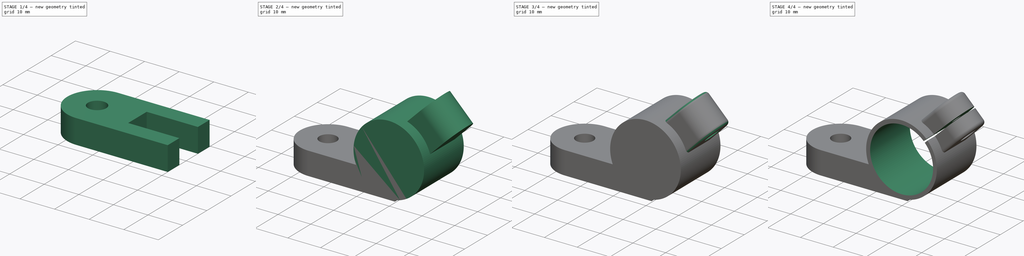
[diagram: build sequence overview — one tinted view per stage of 4, left to right]
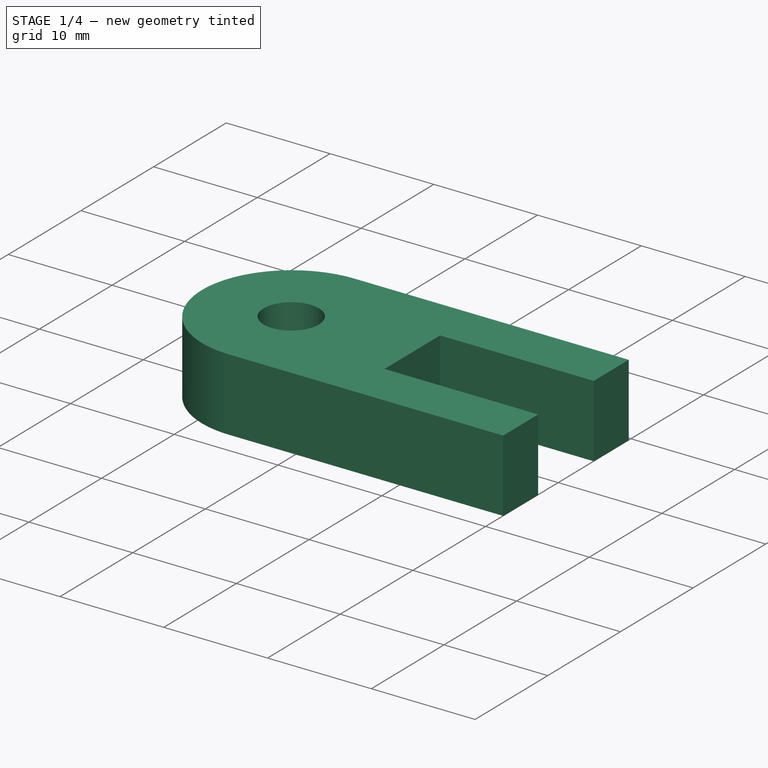
[diagram: stage 1 of 4 — iso view after this stage's code; geometry added in this stage tinted green]
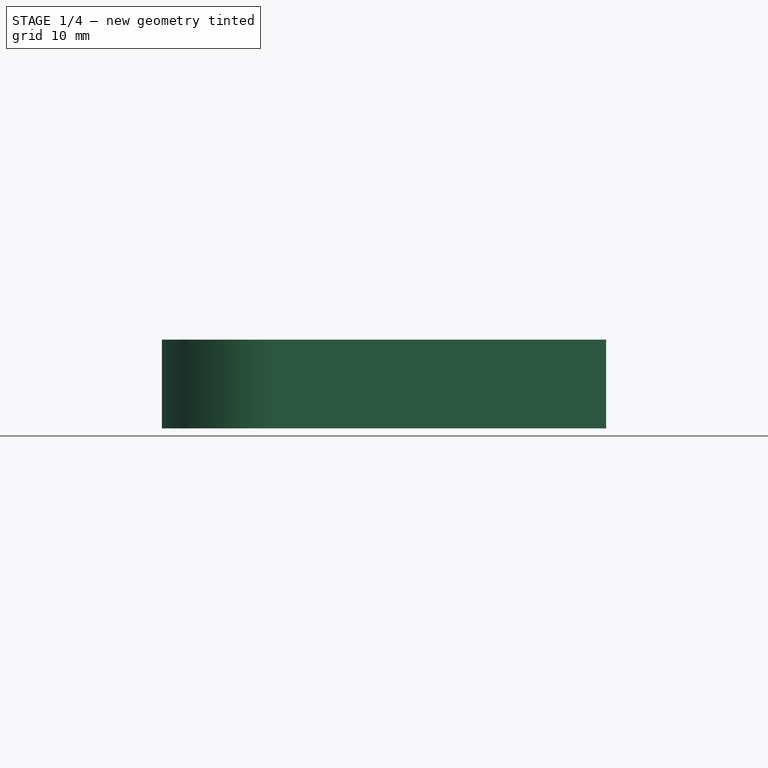
[diagram: stage 1 of 4 — front view after this stage's code; geometry added in this stage tinted green]
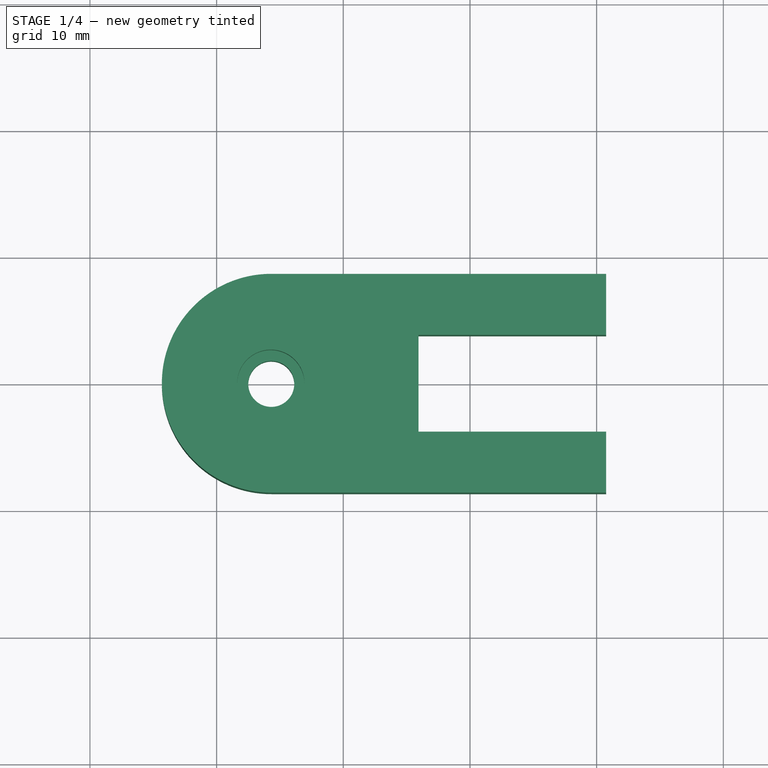
[diagram: stage 1 of 4 — top view after this stage's code; geometry added in this stage tinted green]
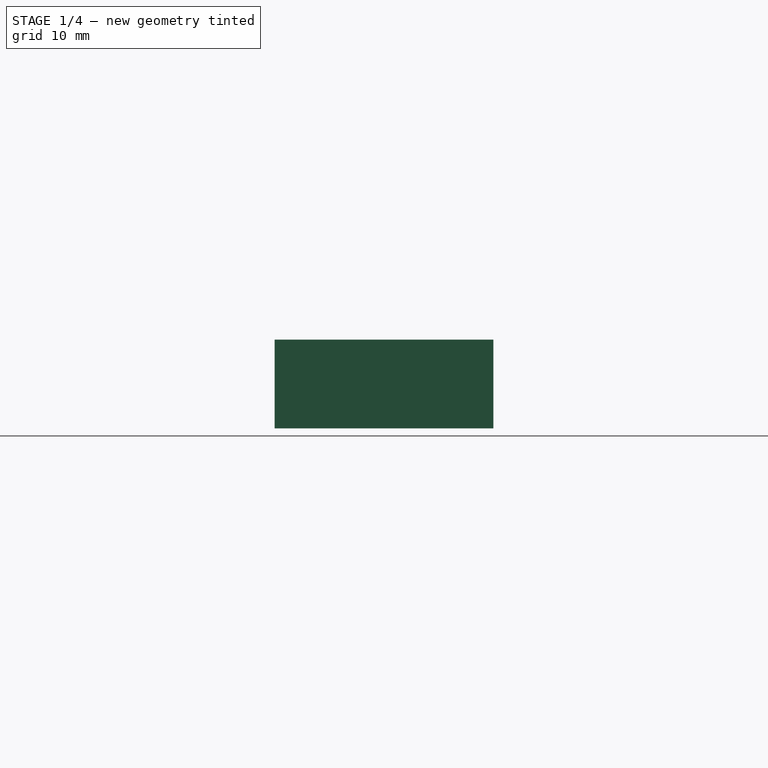
[diagram: stage 1 of 4 — right view after this stage's code; geometry added in this stage tinted green]
FCSTD DOCUMENT  (FreeCAD 0.21R33771 (Git))
Label: ex70
License: All rights reserved
LicenseURL: https://en.wikipedia.org/wiki/All_rights_reserved
objects: Sketcher::SketchObject×8, PartDesign::Pocket×5, PartDesign::Pad×3, PartDesign::Plane×1, PartDesign::Fillet×1, PartDesign::Body×1
note: 28 computed .brp shape members not serialized (recipe doc carries the construction recipe); baked Part::Feature solids carry a one-line shape summary decoded from their .brp

FEATURE [Sketcher::SketchObject] Sketch
  FullyConstrained = false
  MapMode = 5
  Support = -> [XY_Plane]
  sketch-geometry (10):
    g0: ArcOfCircle CenterX=-15.6847 CenterY=0 CenterZ=0 NormalX=0 NormalY=0 NormalZ=1 AngleXU=0 Radius=8.63853 StartAngle=1.5708 EndAngle=4.71239
    g1: LineSegment StartX=-15.6847 StartY=-8.63853 StartZ=0 EndX=10.7484 EndY=-8.63853 EndZ=0
    g2: LineSegment StartX=10.7484 StartY=8.63853 StartZ=0 EndX=-15.6847 EndY=8.63853 EndZ=0
    g3: Circle CenterX=-15.6847 CenterY=0 CenterZ=0 NormalX=0 NormalY=0 NormalZ=1 AngleXU=0 Radius=1.81557
    g4: LineSegment StartX=10.7484 StartY=8.63853 StartZ=0 EndX=10.7484 EndY=3.82165 EndZ=0
    g5: LineSegment StartX=10.7484 StartY=3.82165 StartZ=0 EndX=-4.06051 EndY=3.82165 EndZ=0
    g6: LineSegment StartX=-4.06051 StartY=3.82165 StartZ=0 EndX=-4.06051 EndY=-3.82165 EndZ=0
    g7: LineSegment StartX=-4.06051 StartY=-3.82165 StartZ=0 EndX=10.7484 EndY=-3.82165 EndZ=0
    g8: GeomPoint X=18.551 Y=0 Z=0
    g9: LineSegment StartX=10.7484 StartY=-3.82165 StartZ=0 EndX=10.7484 EndY=-8.63853 EndZ=0
  constraints (15):
    c: Tangent(g0,g1) = -1.5708
    c: Tangent(g2,g0) = -1.5708
    c: PointOnObject(g0,g-1)
    c: Coincident(g3,g0)
    c: Vertical(g4)
    c: Coincident(g2,g4)
    c: Coincident(g1,g9)
    c: Coincident(g5,g6)
    c: Coincident(g6,g7)
    c: Horizontal(g5)
    c: Horizontal(g7)
    c: Vertical(g6)
    c: PointOnObject(g8,g-1)
    c: Coincident(g4,g5)
    c: Coincident(g7,g9)
FEATURE [PartDesign::Pad] Pad
  Direction = (0,0,1)
  Length = 7
  Length2 = 10
  Profile = -> Sketch
  ReferenceAxis = -> Sketch [N_Axis]
  Type = 0
FEATURE [Sketcher::SketchObject] Sketch001
  FullyConstrained = false
  MapMode = 5
  Placement = pos=(0,0,7) rot=(0,0,1;0rad)
  Support = -> [Pad]
  sketch-geometry (1):
    g0: Circle CenterX=-15.7216 CenterY=0 CenterZ=0 NormalX=0 NormalY=0 NormalZ=1 AngleXU=0 Radius=2.65648
  constraints (1):
    c: PointOnObject(g0,g-1)
FEATURE [PartDesign::Pocket] Pocket
  BaseFeature = -> Pad
  Direction = (0,0,-1)
  Length = 3
  Length2 = 5
  Profile = -> Sketch001
  ReferenceAxis = -> Sketch001 [N_Axis]
  Type = 0
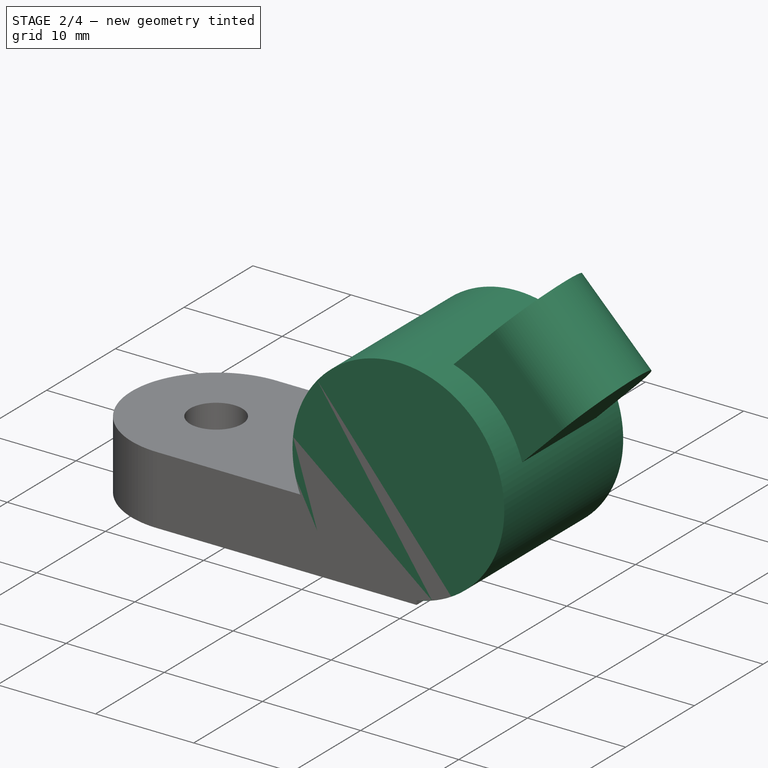
[diagram: stage 2 of 4 — iso view after this stage's code; geometry added in this stage tinted green]
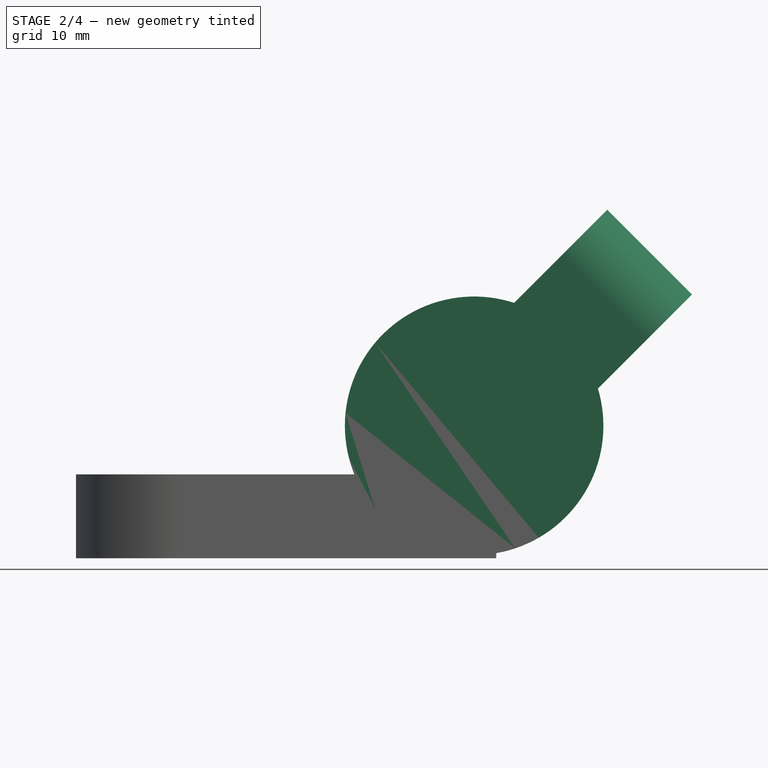
[diagram: stage 2 of 4 — front view after this stage's code; geometry added in this stage tinted green]
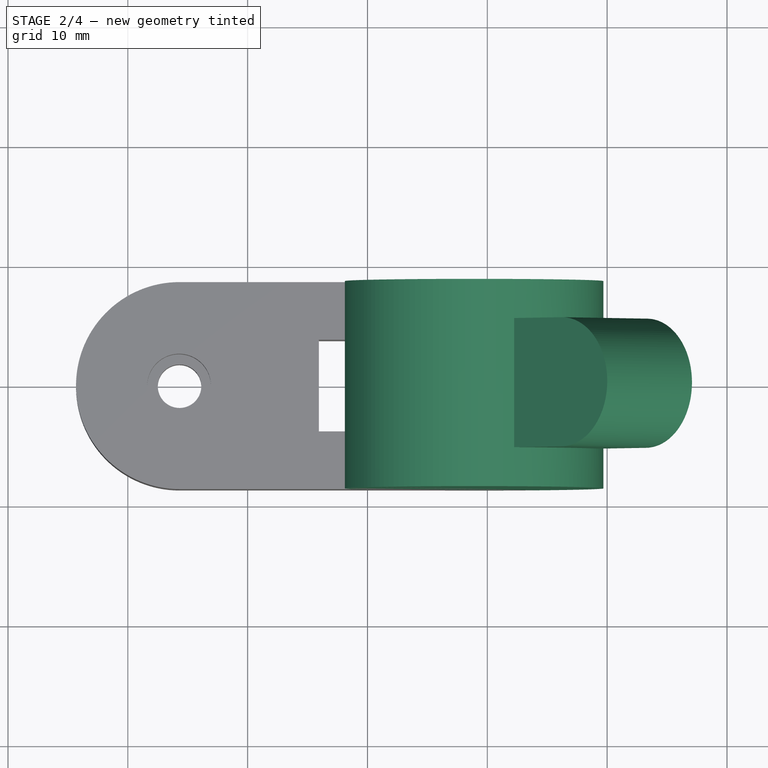
[diagram: stage 2 of 4 — top view after this stage's code; geometry added in this stage tinted green]
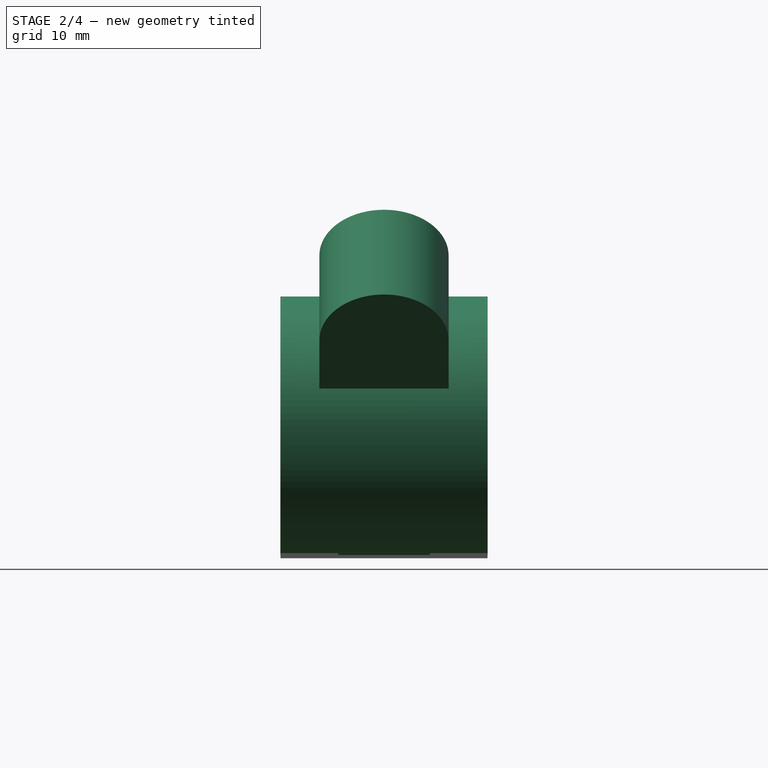
[diagram: stage 2 of 4 — right view after this stage's code; geometry added in this stage tinted green]
FEATURE [Sketcher::SketchObject] Sketch002
  FullyConstrained = false
  MapMode = 5
  Placement = pos=(0,0,0) rot=(1,0,0;1.5708rad)
  Support = -> [XZ_Plane]
  sketch-geometry (1):
    g0: Circle CenterX=8.90116 CenterY=11.0524 CenterZ=0 NormalX=0 NormalY=0 NormalZ=1 AngleXU=0 Radius=10.787
FEATURE [PartDesign::Pad] Pad001
  BaseFeature = -> Pocket
  Direction = (0,-1,2e-16)
  Length = 17.3
  Length2 = 10
  Midplane = true
  Profile = -> Sketch002
  ReferenceAxis = -> Sketch002 [N_Axis]
  Type = 0
FEATURE [PartDesign::Plane] DatumPlane
  AttachmentOffset = pos=(0,0,-2) rot=(0,1,0;0.785398rad)
  Length = 86.6442
  MapMode = 5
  Placement = pos=(0,0,2) rot=(0.92388,0,0.382683;3.14159rad)
  ResizeMode = 0
  Support = -> [Pad001]
  Width = 62.2018
FEATURE [Sketcher::SketchObject] Sketch003
  FullyConstrained = false
  MapMode = 5
  Placement = pos=(0,0,2) rot=(0.92388,0,0.382683;3.14159rad)
  Support = -> [DatumPlane]
  sketch-geometry (4):
    g0: ArcOfCircle CenterX=27.9054 CenterY=0 CenterZ=0 NormalX=0 NormalY=0 NormalZ=1 AngleXU=0 Radius=5.38951 StartAngle=4.71239 EndAngle=7.85398
    g1: LineSegment StartX=20.4065 StartY=-5.38951 StartZ=0 EndX=27.9054 EndY=-5.38951 EndZ=0
    g2: LineSegment StartX=27.9054 StartY=5.38951 StartZ=0 EndX=20.4065 EndY=5.38951 EndZ=0
    g3: LineSegment StartX=20.4065 StartY=5.38951 StartZ=0 EndX=20.4065 EndY=-5.38951 EndZ=0
  constraints (6):
    c: Tangent(g1,g0) = -1.5708
    c: Tangent(g0,g2) = -1.5708
    c: PointOnObject(g0,g-1)
    c: Vertical(g3)
    c: Coincident(g2,g3)
    c: Coincident(g1,g3)
FEATURE [PartDesign::Pad] Pad002
  BaseFeature = -> Pad001
  Direction = (0.707107,0,-0.707107)
  Length = 10
  Length2 = 10
  Midplane = true
  Profile = -> Sketch003
  ReferenceAxis = -> Sketch003 [N_Axis]
  Type = 0
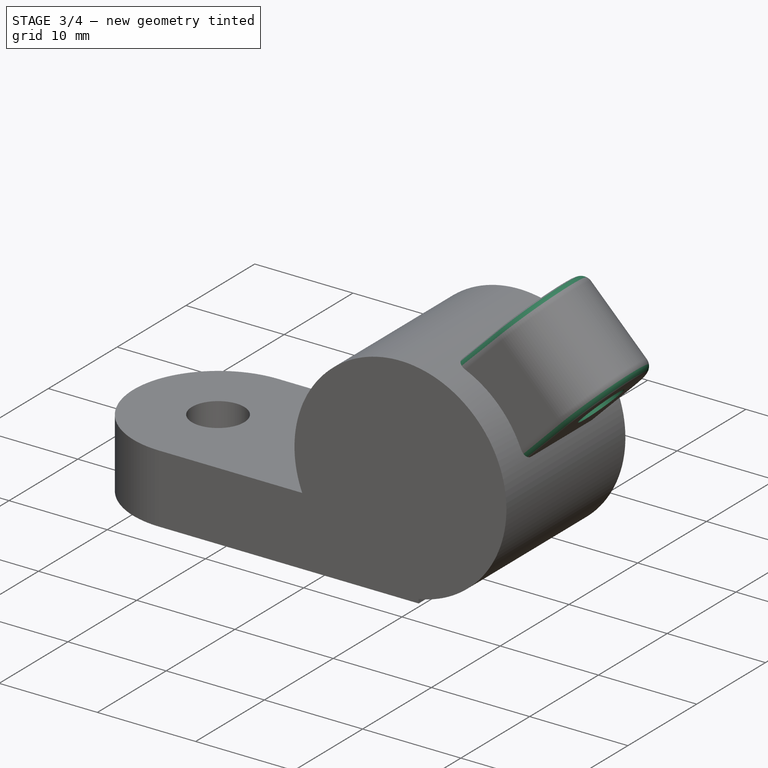
[diagram: stage 3 of 4 — iso view after this stage's code; geometry added in this stage tinted green]
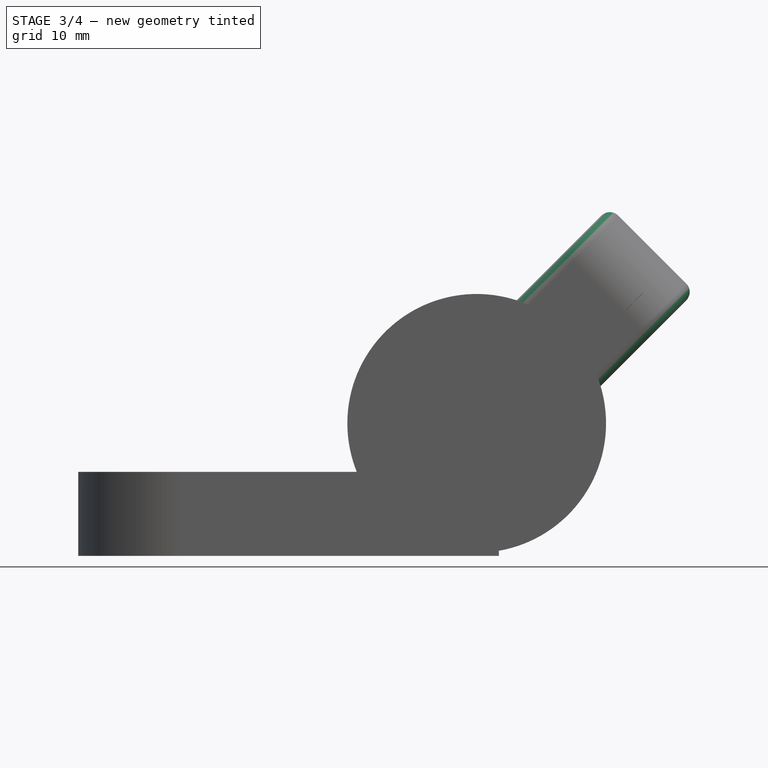
[diagram: stage 3 of 4 — front view after this stage's code; geometry added in this stage tinted green]
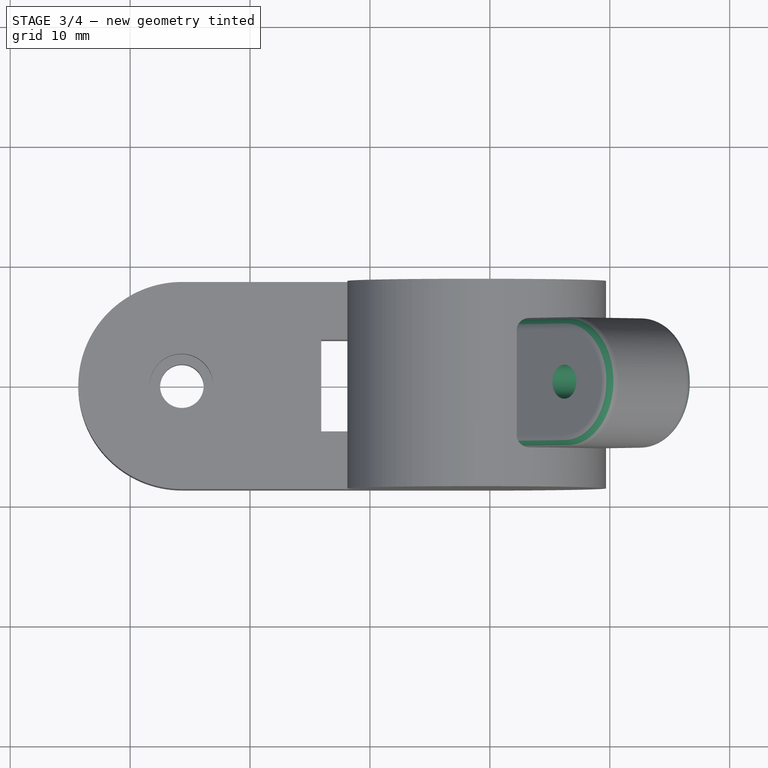
[diagram: stage 3 of 4 — top view after this stage's code; geometry added in this stage tinted green]
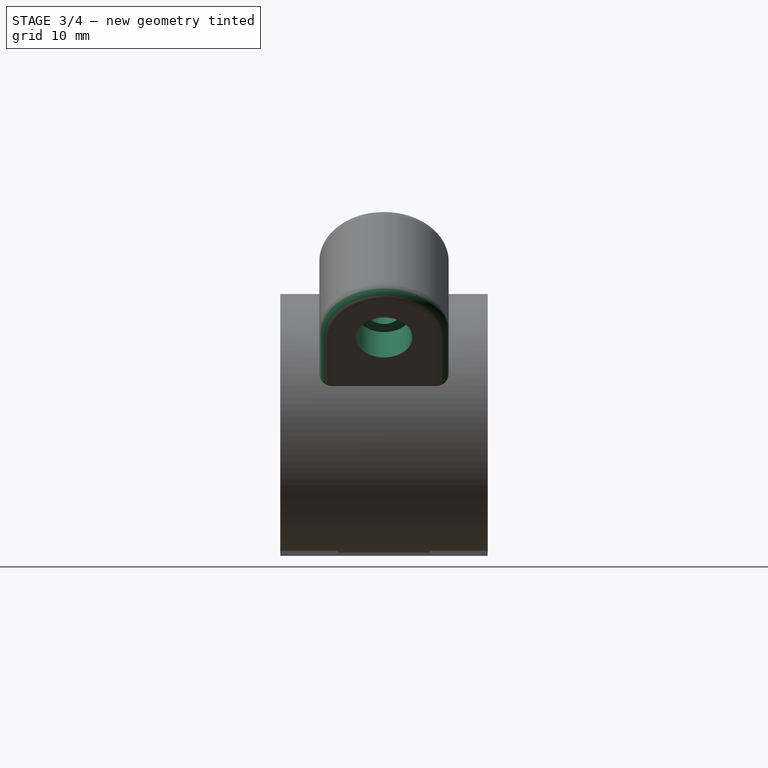
[diagram: stage 3 of 4 — right view after this stage's code; geometry added in this stage tinted green]
FEATURE [PartDesign::Fillet] Fillet
  Base = -> Pad002 [Edge47,Edge48,Edge46,Edge43,Edge42,Edge44]
  BaseFeature = -> Pad002
  Radius = 1
  SupportTransform = false
  UseAllEdges = false
FEATURE [Sketcher::SketchObject] Sketch004
  FullyConstrained = false
  MapMode = 5
  Placement = pos=(2.53553,0,-2.53553) rot=(0.678598,0.678598,0.281085;2.59356rad)
  Support = -> [Fillet]
  sketch-geometry (1):
    g0: Circle CenterX=0 CenterY=29.3433 CenterZ=0 NormalX=0 NormalY=0 NormalZ=1 AngleXU=0 Radius=1.41441
  constraints (1):
    c: PointOnObject(g0,g-2)
FEATURE [PartDesign::Pocket] Pocket001
  BaseFeature = -> Fillet
  Direction = (-0.707107,0,0.707107)
  Length = 13
  Length2 = 5
  Profile = -> Sketch004
  ReferenceAxis = -> Sketch004 [N_Axis]
  Type = 1
FEATURE [Sketcher::SketchObject] Sketch005
  FullyConstrained = false
  MapMode = 5
  Placement = pos=(2.53553,0,-2.53553) rot=(0.678598,0.678598,0.281085;2.59356rad)
  Support = -> [Fillet]
  sketch-geometry (1):
    g0: Circle CenterX=0 CenterY=29.3433 CenterZ=0 NormalX=0 NormalY=0 NormalZ=1 AngleXU=0 Radius=2.36454
  constraints (1):
    c: PointOnObject(g0,g-2)
FEATURE [PartDesign::Pocket] Pocket002
  BaseFeature = -> Pocket001
  Direction = (-0.707107,0,0.707107)
  Length = 3
  Length2 = 5
  Profile = -> Sketch005
  ReferenceAxis = -> Sketch005 [N_Axis]
  Type = 0
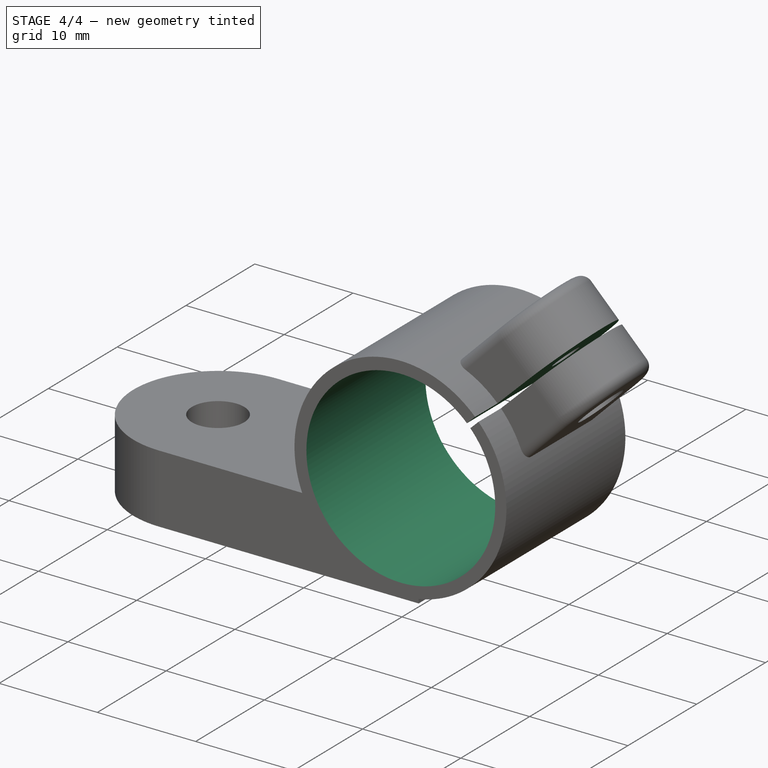
[diagram: stage 4 of 4 — iso view after this stage's code; geometry added in this stage tinted green]
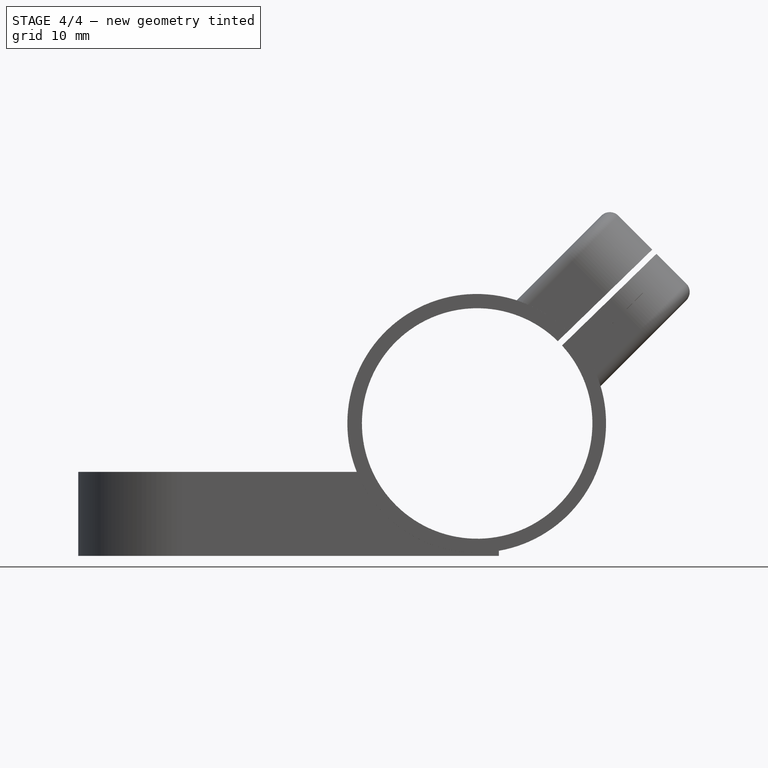
[diagram: stage 4 of 4 — front view after this stage's code; geometry added in this stage tinted green]
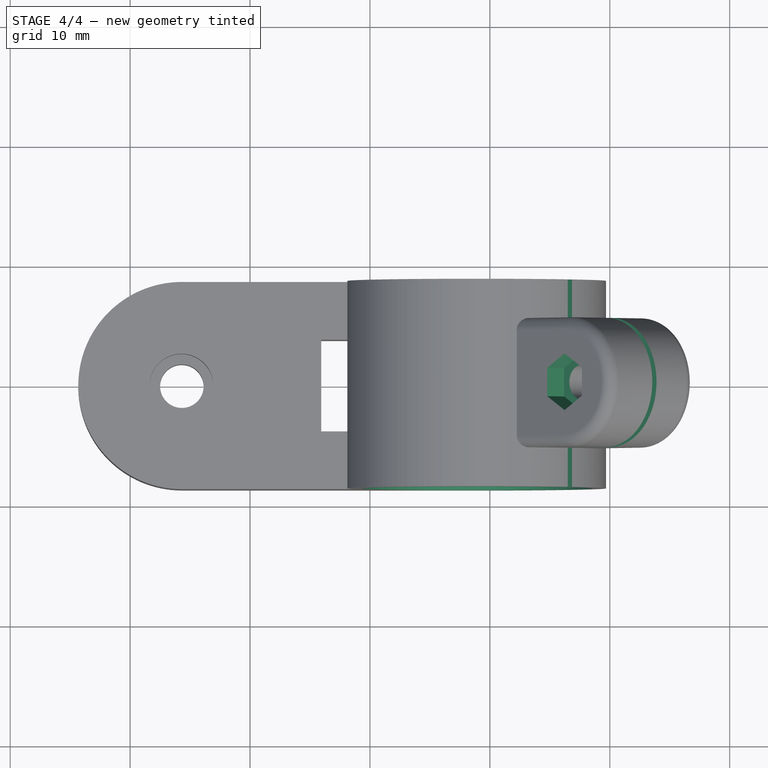
[diagram: stage 4 of 4 — top view after this stage's code; geometry added in this stage tinted green]
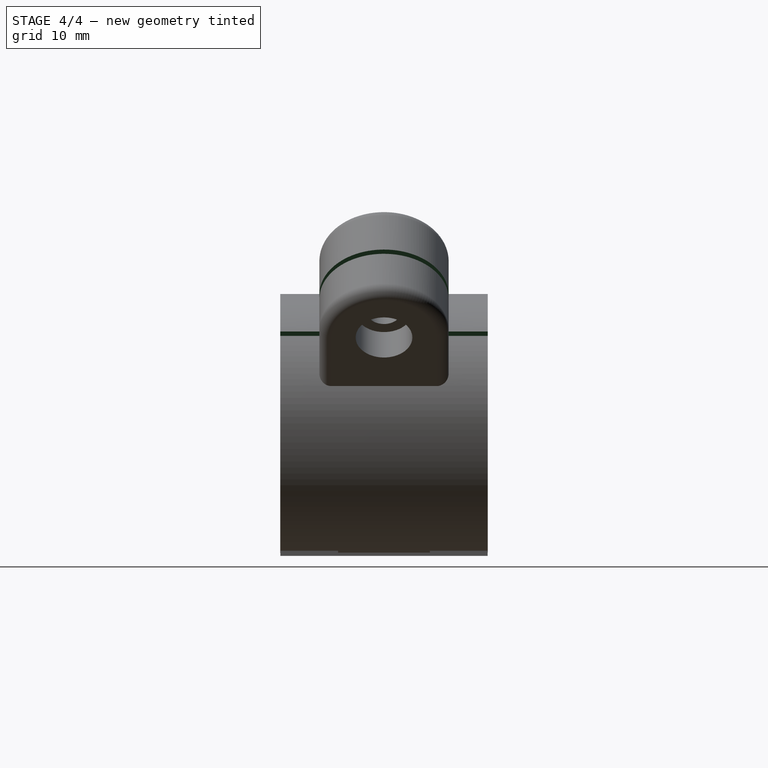
[diagram: stage 4 of 4 — right view after this stage's code; geometry added in this stage tinted green]
FEATURE [Sketcher::SketchObject] Sketch006
  AttachmentOffset = pos=(0,0,-10) rot=(0,0,1;0rad)
  FullyConstrained = false
  MapMode = 5
  Placement = pos=(-4.53553,0,4.53553) rot=(0.678598,0.678598,0.281085;2.59356rad)
  Support = -> [Fillet]
  sketch-geometry (7):
    g0: LineSegment StartX=-1.18215 StartY=27.3176 StartZ=0 EndX=1.18196 EndY=27.3176 EndZ=0
    g1: LineSegment StartX=1.18196 StartY=27.3176 StartZ=0 EndX=2.36401 EndY=29.365 EndZ=0
    g2: LineSegment StartX=2.36401 StartY=29.365 StartZ=0 EndX=1.18196 EndY=31.4124 EndZ=0
    g3: LineSegment StartX=1.18196 StartY=31.4124 StartZ=0 EndX=-1.18215 EndY=31.4124 EndZ=0
    g4: LineSegment StartX=-1.18215 StartY=31.4124 StartZ=0 EndX=-2.3642 EndY=29.365 EndZ=0
    g5: LineSegment StartX=-2.3642 StartY=29.365 StartZ=0 EndX=-1.18215 EndY=27.3176 EndZ=0
    g6: Circle CenterX=-9.29311e-05 CenterY=29.365 CenterZ=0 NormalX=0 NormalY=0 NormalZ=1 AngleXU=0 Radius=2.36411
  constraints (14):
    c: Coincident(g0,g1)
    c: Coincident(g1,g2)
    c: Coincident(g2,g3)
    c: Coincident(g3,g4)
    c: Coincident(g4,g5)
    c: Coincident(g5,g0)
    c: Equal(g0, g1-g5) x5
    c: PointOnObject(g0,g6)
    c: PointOnObject(g1,g6)
    c: PointOnObject(g2,g6)
    c: PointOnObject(g3,g6)
    c: PointOnObject(g4,g6)
    c: PointOnObject(g5,g6)
    c: Horizontal(g0)
FEATURE [PartDesign::Pocket] Pocket003
  BaseFeature = -> Pocket002
  Direction = (-0.707107,0,0.707107)
  Length = 2
  Length2 = 5
  Profile = -> Sketch006
  ReferenceAxis = -> Sketch006 [N_Axis]
  Reversed = true
  Type = 0
FEATURE [Sketcher::SketchObject] Sketch007
  FullyConstrained = false
  MapMode = 5
  Placement = pos=(0,-8.65,1.9e-15) rot=(1,0,0;1.5708rad)
  Support = -> [Pocket003]
  sketch-geometry (4):
    g0: ArcOfCircle CenterX=8.94 CenterY=11.04 CenterZ=0 NormalX=0 NormalY=0 NormalZ=1 AngleXU=0 Radius=9.61039 StartAngle=0.795379 EndAngle=7.02614
    g1: LineSegment StartX=24.5233 StartY=26.4948 StartZ=0 EndX=15.6674 EndY=17.9031 EndZ=0
    g2: LineSegment StartX=16.0178 StartY=17.5411 StartZ=0 EndX=24.87 EndY=26.1368 EndZ=0
    g3: LineSegment StartX=24.87 StartY=26.1368 StartZ=0 EndX=24.5233 EndY=26.4948 EndZ=0
  constraints (6):
    c: Coincident(g2,g3)
    c: Coincident(g3,g1)
    c: DistanceY(g-1,g0) = 11.04
    c: DistanceX(g-1,g0) = 8.94
    c: Coincident(g0,g2)
    c: Coincident(g0,g1)
FEATURE [PartDesign::Pocket] Pocket004
  BaseFeature = -> Pocket003
  Direction = (0,1,-2e-16)
  Length = 28
  Length2 = 5
  Profile = -> Sketch007
  ReferenceAxis = -> Sketch007 [N_Axis]
  Type = 0
FEATURE [PartDesign::Body] Body
  Group = -> [Sketch,Pad,Sketch001,Pocket,Sketch002,Pad001,DatumPlane,Sketch003,Pad002,Fillet,Sketch004,Pocket001,Sketch005,Pocket002,Sketch006,Pocket003,Sketch007,Pocket004]
  Origin = -> Origin
  Tip = -> Pocket004
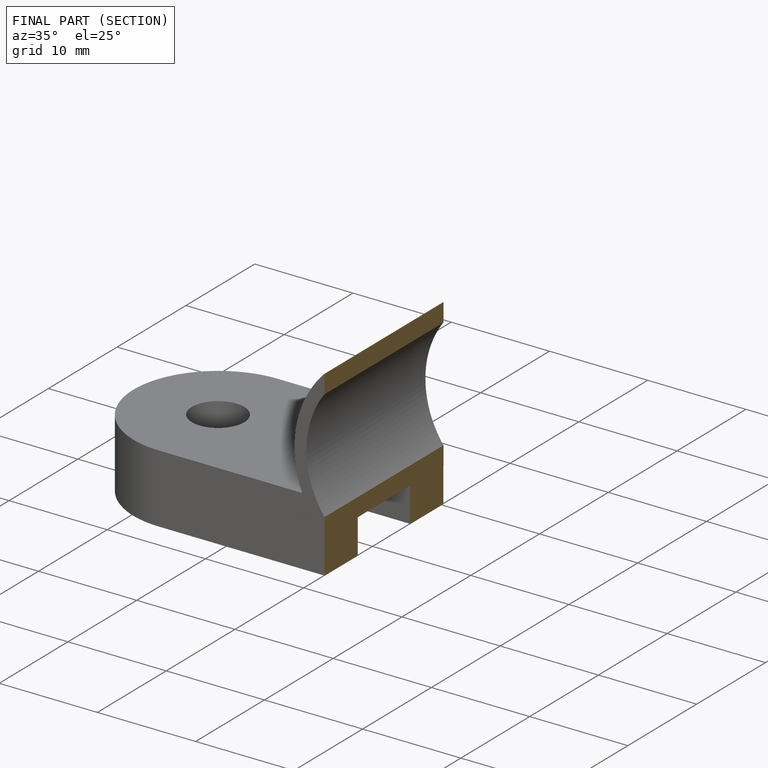
[diagram: finished part — half-section view (interior)]
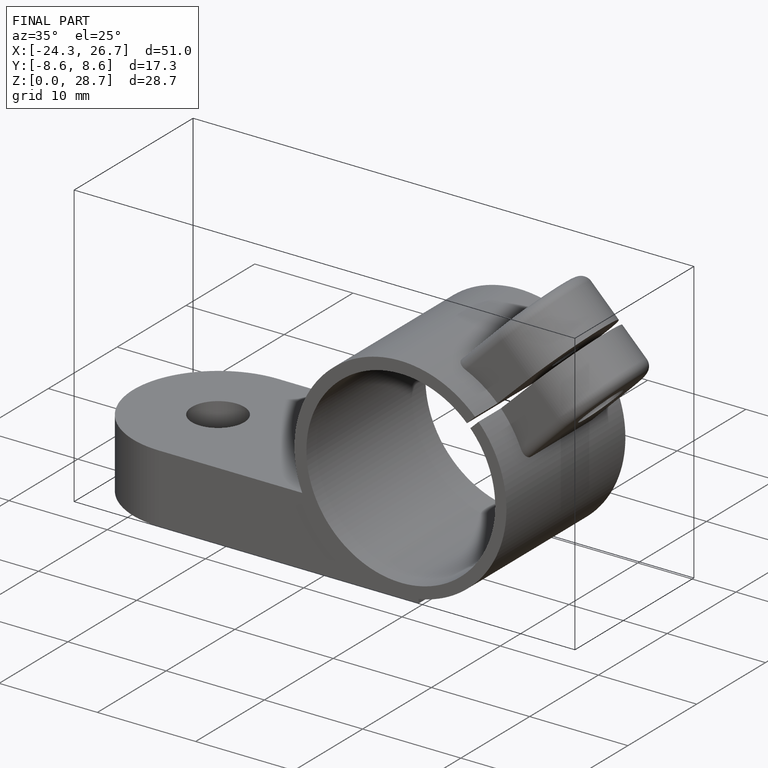
[diagram: finished part — iso view with bounding-box wireframe]
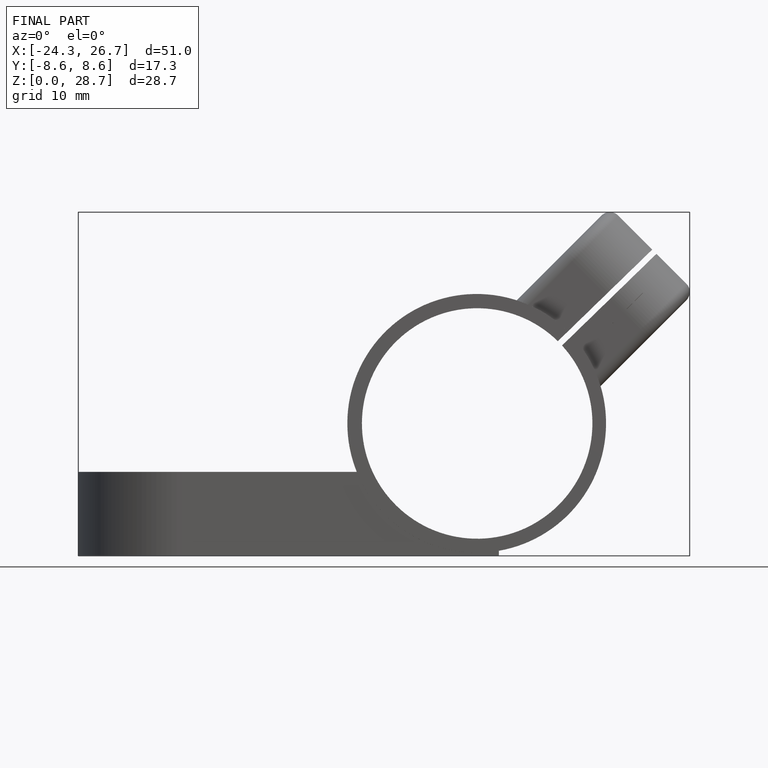
[diagram: finished part — front view with bounding-box wireframe]
